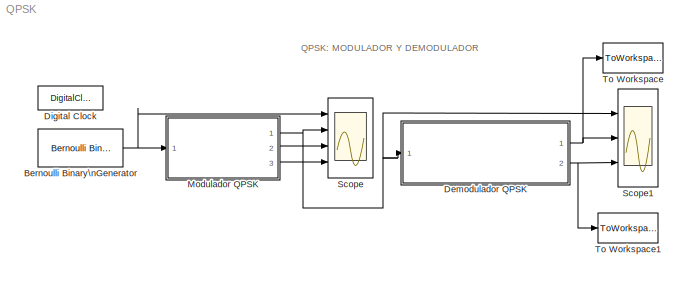
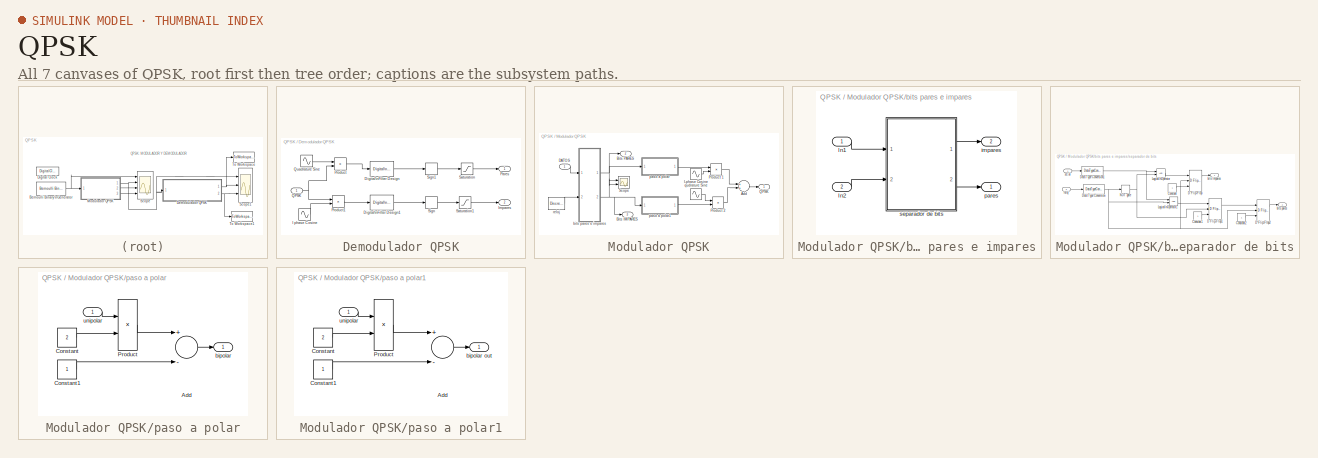
[diagram: thumbnail index - all 7 canvases of the model, root first then tree order]
MODEL QPSK
KIND model
CONFIG StopFcn = QPSK_RX_StopFcn
BLOCK [Reference] Bernoulli Binary\nGenerator  REF=commrandsrc2/Bernoulli Binary\nGenerator
  DialogController = commDDGCreate
  DialogControllerArgs = DataTag0
  FunctionWithSeparateData = off
  P = 0.5
  Ports = [0, 1]
  RTWMemSecDataConstants = Inherit from model
  RTWMemSecDataInternal = Inherit from model
  RTWMemSecDataParameters = Inherit from model
  RTWMemSecFuncExecute = Inherit from model
  RTWMemSecFuncInitTerm = Inherit from model
  ShowPortLabels = FromPortIcon
  SourceBlock = commrandsrc2/Bernoulli Binary\nGenerator
  SourceType = Bernoulli Binary Generator
  SystemSampleTime = -1
  Ts = .5
  frameBased = off
  orient = off
  outDataType = double
  sampPerFrame = 1
  seed = 61
BLOCK [SubSystem] Demodulador QPSK
  FunctionWithSeparateData = off
  MaskHideContents = off
  MinAlgLoopOccurrences = off
  Opaque = off
  Ports = [1, 2]
  PropExecContextOutsideSubsystem = off
  RTWSystemCode = Auto
  RequestExecContextInheritance = off
BLOCK [Reference] Demodulador QPSK/Digital\nFilter Design  REF=dsparch4/Digital\nFilter Design
  FunctionWithSeparateData = off
  Ports = [1, 1]
  RTWMemSecDataConstants = Inherit from model
  RTWMemSecDataInternal = Inherit from model
  RTWMemSecDataParameters = Inherit from model
  RTWMemSecFuncExecute = Inherit from model
  RTWMemSecFuncInitTerm = Inherit from model
  ShowPortLabels = FromPortIcon
  SourceBlock = dsparch4/Digital\nFilter Design
  SourceType = Digital Filter Design
  SystemSampleTime = -1
  UserData = DataTag1
  UserDataPersistent = on
  mwdsp_browser_bugfix_var = off
BLOCK [Reference] Demodulador QPSK/Digital\nFilter Design1  REF=dsparch4/Digital\nFilter Design
  FunctionWithSeparateData = off
  Ports = [1, 1]
  RTWMemSecDataConstants = Inherit from model
  RTWMemSecDataInternal = Inherit from model
  RTWMemSecDataParameters = Inherit from model
  RTWMemSecFuncExecute = Inherit from model
  RTWMemSecFuncInitTerm = Inherit from model
  ShowPortLabels = FromPortIcon
  SourceBlock = dsparch4/Digital\nFilter Design
  SourceType = Digital Filter Design
  SystemSampleTime = -1
  UserData = DataTag2
  UserDataPersistent = on
  mwdsp_browser_bugfix_var = off
BLOCK [Sin] Demodulador QPSK/I phase Cosine
  Frequency = 2*pi*4
  Offset = 25
  Phase = pi
  Ports = [0, 1]
  SampleTime = 1/100
  Samples = 100
BLOCK [Outport] Demodulador QPSK/Impares
  IconDisplay = Port number
  OutDataType = sfix(16)
  OutScaling = 2^0
  Port = 2
BLOCK [Outport] Demodulador QPSK/Pares
  IconDisplay = Port number
  OutDataType = sfix(16)
  OutScaling = 2^0
BLOCK [Product] Demodulador QPSK/Product
  InputSameDT = off
  OutDataType = sfix(16)
  OutDataTypeMode = Inherit via internal rule
  OutDataTypeStr = Inherit: Inherit via internal rule
  OutScaling = 2^0
  Ports = [2, 1]
  SampleTime = 1/200
  SaturateOnIntegerOverflow = off
BLOCK [Product] Demodulador QPSK/Product1
  InputSameDT = off
  OutDataType = sfix(16)
  OutDataTypeMode = Inherit via internal rule
  OutDataTypeStr = Inherit: Inherit via internal rule
  OutScaling = 2^0
  Ports = [2, 1]
  SampleTime = 1/200
  SaturateOnIntegerOverflow = off
BLOCK [Inport] Demodulador QPSK/QPSK
  IconDisplay = Port number
  OutDataType = sfix(16)
  OutScaling = 2^0
BLOCK [Sin] Demodulador QPSK/Quadrature Sine
  Frequency = 2*pi*4
  Offset = 50
  Phase = pi/2
  Ports = [0, 1]
  SampleTime = 1/100
  Samples = 100
BLOCK [Saturate] Demodulador QPSK/Saturation
  LowerLimit = 0
  UpperLimit = 1
BLOCK [Saturate] Demodulador QPSK/Saturation1
  LowerLimit = 0
  UpperLimit = 1
BLOCK [Signum] Demodulador QPSK/Sign
BLOCK [Signum] Demodulador QPSK/Sign1
BLOCK [DigitalClock] Digital Clock
  SampleTime = 0.001
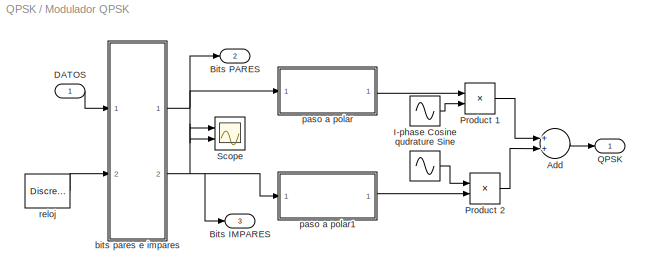
BLOCK [SubSystem] Modulador QPSK
  FunctionWithSeparateData = off
  MaskHideContents = off
  MinAlgLoopOccurrences = off
  Opaque = off
  Ports = [1, 3]
  PropExecContextOutsideSubsystem = off
  RTWSystemCode = Auto
  RequestExecContextInheritance = off
BLOCK [Sum] Modulador QPSK/Add
  InputSameDT = off
  OutDataType = sfix(16)
  OutDataTypeMode = Inherit via internal rule
  OutDataTypeStr = Inherit: Inherit via internal rule
  OutScaling = 2^-10
  Ports = [2, 1]
  SaturateOnIntegerOverflow = off
BLOCK [Outport] Modulador QPSK/Bits IMPARES
  IconDisplay = Port number
  OutDataType = sfix(16)
  OutScaling = 2^0
  Port = 3
BLOCK [Outport] Modulador QPSK/Bits PARES
  IconDisplay = Port number
  OutDataType = sfix(16)
  OutScaling = 2^0
  Port = 2
BLOCK [Inport] Modulador QPSK/DATOS
  IconDisplay = Port number
  OutDataType = sfix(16)
  OutScaling = 2^0
BLOCK [Sin] Modulador QPSK/I-phase Cosine 
  Frequency = 2*pi*4
  Phase = pi/2
  Ports = [0, 1]
  SampleTime = 0.01
BLOCK [Product] Modulador QPSK/Product 1
  InputSameDT = off
  OutDataType = sfix(16)
  OutDataTypeMode = Inherit via internal rule
  OutDataTypeStr = Inherit: Inherit via internal rule
  OutScaling = 2^0
  Ports = [2, 1]
  SaturateOnIntegerOverflow = off
BLOCK [Product] Modulador QPSK/Product 2
  InputSameDT = off
  OutDataType = sfix(16)
  OutDataTypeMode = Inherit via internal rule
  OutDataTypeStr = Inherit: Inherit via internal rule
  OutScaling = 2^0
  Ports = [2, 1]
  SaturateOnIntegerOverflow = off
BLOCK [Outport] Modulador QPSK/QPSK
  IconDisplay = Port number
  OutDataType = sfix(16)
  OutScaling = 2^0
BLOCK [Scope] Modulador QPSK/Scope
  DataFormat = StructureWithTime
  Floating = off
  LimitDataPoints = off
  NumInputPorts = 2
  Ports = [2]
  SampleInput = on
  SampleTime = 0
  SaveName = ScopeData1
  YMax = 5~5
  YMin = -5~-5
BLOCK [SubSystem] Modulador QPSK/bits pares e impares
  FunctionWithSeparateData = off
  MaskHideContents = off
  MinAlgLoopOccurrences = off
  Opaque = off
  Ports = [2, 2]
  PropExecContextOutsideSubsystem = off
  RTWSystemCode = Auto
  RequestExecContextInheritance = off
BLOCK [Inport] Modulador QPSK/bits pares e impares/In1
  IconDisplay = Port number
  OutDataType = sfix(16)
  OutScaling = 2^0
BLOCK [Inport] Modulador QPSK/bits pares e impares/In2
  IconDisplay = Port number
  OutDataType = sfix(16)
  OutScaling = 2^0
  Port = 2
BLOCK [Outport] Modulador QPSK/bits pares e impares/impares
  IconDisplay = Port number
  OutDataType = sfix(16)
  OutScaling = 2^0
  Port = 2
BLOCK [Outport] Modulador QPSK/bits pares e impares/pares
  IconDisplay = Port number
  OutDataType = sfix(16)
  OutScaling = 2^0
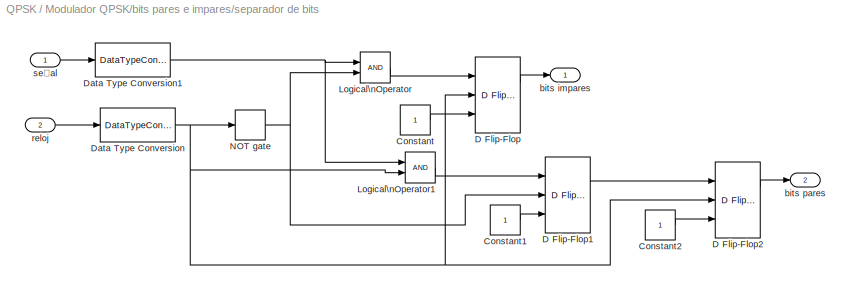
BLOCK [SubSystem] Modulador QPSK/bits pares e impares/separador de bits
  FunctionWithSeparateData = off
  MaskHideContents = off
  MinAlgLoopOccurrences = off
  Opaque = off
  Ports = [2, 2]
  PropExecContextOutsideSubsystem = off
  RTWSystemCode = Auto
  RequestExecContextInheritance = off
BLOCK [Constant] Modulador QPSK/bits pares e impares/separador de bits/Constant
  OutDataType = sfix(16)
  OutDataTypeMode = boolean
  OutDataTypeStr = boolean
  OutScaling = 2^0
BLOCK [Constant] Modulador QPSK/bits pares e impares/separador de bits/Constant1
  OutDataType = sfix(16)
  OutDataTypeMode = boolean
  OutDataTypeStr = boolean
  OutScaling = 2^0
BLOCK [Constant] Modulador QPSK/bits pares e impares/separador de bits/Constant2
  OutDataType = sfix(16)
  OutDataTypeMode = boolean
  OutDataTypeStr = boolean
  OutScaling = 2^0
BLOCK [Reference] Modulador QPSK/bits pares e impares/separador de bits/D Flip-Flop  REF=simulink_extras/Flip Flops/D Flip-Flop
  FunctionWithSeparateData = off
  Ports = [3, 2]
  RTWMemSecDataConstants = Inherit from model
  RTWMemSecDataInternal = Inherit from model
  RTWMemSecDataParameters = Inherit from model
  RTWMemSecFuncExecute = Inherit from model
  RTWMemSecFuncInitTerm = Inherit from model
  ShowPortLabels = FromPortIcon
  SourceBlock = simulink_extras/Flip Flops/D Flip-Flop
  SourceType = DFlipFlop
  SystemSampleTime = -1
BLOCK [Reference] Modulador QPSK/bits pares e impares/separador de bits/D Flip-Flop1  REF=simulink_extras/Flip Flops/D Flip-Flop
  FunctionWithSeparateData = off
  Ports = [3, 2]
  RTWMemSecDataConstants = Inherit from model
  RTWMemSecDataInternal = Inherit from model
  RTWMemSecDataParameters = Inherit from model
  RTWMemSecFuncExecute = Inherit from model
  RTWMemSecFuncInitTerm = Inherit from model
  ShowPortLabels = FromPortIcon
  SourceBlock = simulink_extras/Flip Flops/D Flip-Flop
  SourceType = DFlipFlop
  SystemSampleTime = -1
BLOCK [Reference] Modulador QPSK/bits pares e impares/separador de bits/D Flip-Flop2  REF=simulink_extras/Flip Flops/D Flip-Flop
  FunctionWithSeparateData = off
  Ports = [3, 2]
  RTWMemSecDataConstants = Inherit from model
  RTWMemSecDataInternal = Inherit from model
  RTWMemSecDataParameters = Inherit from model
  RTWMemSecFuncExecute = Inherit from model
  RTWMemSecFuncInitTerm = Inherit from model
  ShowPortLabels = FromPortIcon
  SourceBlock = simulink_extras/Flip Flops/D Flip-Flop
  SourceType = DFlipFlop
  SystemSampleTime = -1
BLOCK [DataTypeConversion] Modulador QPSK/bits pares e impares/separador de bits/Data Type Conversion
  OutDataType = sfix(16)
  OutDataTypeMode = boolean
  OutDataTypeStr = boolean
  OutScaling = 2^0
  RndMeth = Floor
  SaturateOnIntegerOverflow = off
BLOCK [DataTypeConversion] Modulador QPSK/bits pares e impares/separador de bits/Data Type Conversion1
  OutDataType = sfix(16)
  OutDataTypeMode = boolean
  OutDataTypeStr = boolean
  OutScaling = 2^0
  RndMeth = Floor
  SaturateOnIntegerOverflow = off
BLOCK [Logic] Modulador QPSK/bits pares e impares/separador de bits/Logical\nOperator
  AllPortsSameDT = off
  OutDataTypeMode = boolean
  OutDataTypeStr = boolean
  Ports = [2, 1]
BLOCK [Logic] Modulador QPSK/bits pares e impares/separador de bits/Logical\nOperator1
  AllPortsSameDT = off
  OutDataTypeMode = boolean
  OutDataTypeStr = boolean
  Ports = [2, 1]
BLOCK [CombinatorialLogic] Modulador QPSK/bits pares e impares/separador de bits/NOT gate
  TruthTable = [1;0]
BLOCK [Outport] Modulador QPSK/bits pares e impares/separador de bits/bits impares
  IconDisplay = Port number
  OutDataType = sfix(16)
  OutScaling = 2^0
BLOCK [Outport] Modulador QPSK/bits pares e impares/separador de bits/bits pares
  IconDisplay = Port number
  OutDataType = sfix(16)
  OutScaling = 2^0
  Port = 2
BLOCK [Inport] Modulador QPSK/bits pares e impares/separador de bits/reloj
  IconDisplay = Port number
  OutDataType = sfix(16)
  OutScaling = 2^0
  Port = 2
BLOCK [Inport] Modulador QPSK/bits pares e impares/separador de bits/señal
  IconDisplay = Port number
  OutDataType = sfix(16)
  OutScaling = 2^0
BLOCK [SubSystem] Modulador QPSK/paso a polar
  FunctionWithSeparateData = off
  MaskHideContents = off
  MinAlgLoopOccurrences = off
  Opaque = off
  Ports = [1, 1]
  PropExecContextOutsideSubsystem = off
  RTWSystemCode = Auto
  RequestExecContextInheritance = off
BLOCK [Sum] Modulador QPSK/paso a polar/Add
  InputSameDT = off
  Inputs = +-
  OutDataType = sfix(16)
  OutDataTypeMode = Inherit via internal rule
  OutDataTypeStr = Inherit: Inherit via internal rule
  OutScaling = 2^-10
  Ports = [2, 1]
  SaturateOnIntegerOverflow = off
BLOCK [Constant] Modulador QPSK/paso a polar/Constant
  OutDataType = sfix(16)
  OutScaling = 2^0
  Value = 2
BLOCK [Constant] Modulador QPSK/paso a polar/Constant1
  OutDataType = sfix(16)
  OutScaling = 2^0
BLOCK [Product] Modulador QPSK/paso a polar/Product
  InputSameDT = off
  OutDataType = sfix(16)
  OutDataTypeMode = Inherit via internal rule
  OutDataTypeStr = Inherit: Inherit via internal rule
  OutScaling = 2^0
  Ports = [2, 1]
  SaturateOnIntegerOverflow = off
BLOCK [Outport] Modulador QPSK/paso a polar/bipolar
  IconDisplay = Port number
  OutDataType = sfix(16)
  OutScaling = 2^0
BLOCK [Inport] Modulador QPSK/paso a polar/unipolar
  IconDisplay = Port number
  OutDataType = sfix(16)
  OutScaling = 2^0
BLOCK [SubSystem] Modulador QPSK/paso a polar1
  FunctionWithSeparateData = off
  MaskHideContents = off
  MinAlgLoopOccurrences = off
  Opaque = off
  Ports = [1, 1]
  PropExecContextOutsideSubsystem = off
  RTWSystemCode = Auto
  RequestExecContextInheritance = off
BLOCK [Sum] Modulador QPSK/paso a polar1/Add
  InputSameDT = off
  Inputs = +-
  OutDataType = sfix(16)
  OutDataTypeMode = Inherit via internal rule
  OutDataTypeStr = Inherit: Inherit via internal rule
  OutScaling = 2^-10
  Ports = [2, 1]
  SaturateOnIntegerOverflow = off
BLOCK [Constant] Modulador QPSK/paso a polar1/Constant
  OutDataType = sfix(16)
  OutScaling = 2^0
  Value = 2
BLOCK [Constant] Modulador QPSK/paso a polar1/Constant1
  OutDataType = sfix(16)
  OutScaling = 2^0
BLOCK [Product] Modulador QPSK/paso a polar1/Product
  InputSameDT = off
  OutDataType = sfix(16)
  OutDataTypeMode = Inherit via internal rule
  OutDataTypeStr = Inherit: Inherit via internal rule
  OutScaling = 2^0
  Ports = [2, 1]
  SaturateOnIntegerOverflow = off
BLOCK [Outport] Modulador QPSK/paso a polar1/bipolar out
  IconDisplay = Port number
  OutDataType = sfix(16)
  OutScaling = 2^0
BLOCK [Inport] Modulador QPSK/paso a polar1/unipolar
  IconDisplay = Port number
  OutDataType = sfix(16)
  OutScaling = 2^0
BLOCK [Sin] Modulador QPSK/qudrature Sine
  Frequency = 2*pi*4
  Phase = pi
  Ports = [0, 1]
  SampleTime = 0.01
BLOCK [DiscretePulseGenerator] Modulador QPSK/reloj
  Period = 1
  Ports = [0, 1]
  PulseType = Time based
  PulseWidth = 50
BLOCK [Scope] Scope
  DataFormat = StructureWithTime
  Floating = off
  LimitDataPoints = off
  NumInputPorts = 4
  Ports = [4]
  SampleInput = on
  SampleTime = 0
  YMax = 5~5~5~3
  YMin = -5~-5~-5~-3
BLOCK [Scope] Scope1
  DataFormat = StructureWithTime
  Floating = off
  LimitDataPoints = off
  NumInputPorts = 3
  Ports = [3]
  SampleInput = on
  SampleTime = 0
  SaveName = ScopeData2
  YMax = 5~5~5
  YMin = -5~-5~-5
BLOCK [ToWorkspace] To Workspace
  MaxDataPoints = inf
  SampleTime = 1/100
  SaveFormat = Array
  VariableName = pares
BLOCK [ToWorkspace] To Workspace1
  MaxDataPoints = inf
  SampleTime = 1/100
  SaveFormat = Array
  VariableName = impares
ANNOTATION (root): QPSK: MODULADOR Y DEMODULADOR
NET Bernoulli Binary\nGenerator:1 -> Modulador QPSK:1, Scope:1
LINE Demodulador QPSK/Digital\nFilter Design1:1 -> Demodulador QPSK/Sign:1
LINE Demodulador QPSK/Digital\nFilter Design:1 -> Demodulador QPSK/Sign1:1
LINE Demodulador QPSK/I phase Cosine:1 -> Demodulador QPSK/Product1:2
LINE Demodulador QPSK/Product1:1 -> Demodulador QPSK/Digital\nFilter Design1:1
LINE Demodulador QPSK/Product:1 -> Demodulador QPSK/Digital\nFilter Design:1
NET Demodulador QPSK/QPSK:1 -> Demodulador QPSK/Product1:1, Demodulador QPSK/Product:2
LINE Demodulador QPSK/Quadrature Sine:1 -> Demodulador QPSK/Product:1
LINE Demodulador QPSK/Saturation1:1 -> Demodulador QPSK/Impares:1
LINE Demodulador QPSK/Saturation:1 -> Demodulador QPSK/Pares:1
LINE Demodulador QPSK/Sign1:1 -> Demodulador QPSK/Saturation:1
LINE Demodulador QPSK/Sign:1 -> Demodulador QPSK/Saturation1:1
NET Demodulador QPSK:1 -> Scope1:2, To Workspace:1
NET Demodulador QPSK:2 -> Scope1:3, To Workspace1:1
LINE Modulador QPSK/Add:1 -> Modulador QPSK/QPSK:1
LINE Modulador QPSK/DATOS:1 -> Modulador QPSK/bits pares e impares:1
LINE Modulador QPSK/I-phase Cosine :1 -> Modulador QPSK/Product 1:2
LINE Modulador QPSK/Product 1:1 -> Modulador QPSK/Add:1
LINE Modulador QPSK/Product 2:1 -> Modulador QPSK/Add:2
LINE Modulador QPSK/bits pares e impares/In1:1 -> Modulador QPSK/bits pares e impares/separador de bits:1
LINE Modulador QPSK/bits pares e impares/In2:1 -> Modulador QPSK/bits pares e impares/separador de bits:2
LINE Modulador QPSK/bits pares e impares/separador de bits/Constant1:1 -> Modulador QPSK/bits pares e impares/separador de bits/D Flip-Flop1:3
LINE Modulador QPSK/bits pares e impares/separador de bits/Constant2:1 -> Modulador QPSK/bits pares e impares/separador de bits/D Flip-Flop2:3
LINE Modulador QPSK/bits pares e impares/separador de bits/Constant:1 -> Modulador QPSK/bits pares e impares/separador de bits/D Flip-Flop:3
LINE Modulador QPSK/bits pares e impares/separador de bits/D Flip-Flop1:1 -> Modulador QPSK/bits pares e impares/separador de bits/D Flip-Flop2:1
LINE Modulador QPSK/bits pares e impares/separador de bits/D Flip-Flop2:1 -> Modulador QPSK/bits pares e impares/separador de bits/bits pares:1
LINE Modulador QPSK/bits pares e impares/separador de bits/D Flip-Flop:1 -> Modulador QPSK/bits pares e impares/separador de bits/bits impares:1
NET Modulador QPSK/bits pares e impares/separador de bits/Data Type Conversion1:1 -> Modulador QPSK/bits pares e impares/separador de bits/Logical\nOperator1:1, Modulador QPSK/bits pares e impares/separador de bits/Logical\nOperator:1
NET Modulador QPSK/bits pares e impares/separador de bits/Data Type Conversion:1 -> Modulador QPSK/bits pares e impares/separador de bits/D Flip-Flop2:2, Modulador QPSK/bits pares e impares/separador de bits/D Flip-Flop:2, Modulador QPSK/bits pares e impares/separador de bits/Logical\nOperator1:2, Modulador QPSK/bits pares e impares/separador de bits/NOT gate:1
LINE Modulador QPSK/bits pares e impares/separador de bits/Logical\nOperator1:1 -> Modulador QPSK/bits pares e impares/separador de bits/D Flip-Flop1:1
LINE Modulador QPSK/bits pares e impares/separador de bits/Logical\nOperator:1 -> Modulador QPSK/bits pares e impares/separador de bits/D Flip-Flop:1
NET Modulador QPSK/bits pares e impares/separador de bits/NOT gate:1 -> Modulador QPSK/bits pares e impares/separador de bits/D Flip-Flop1:2, Modulador QPSK/bits pares e impares/separador de bits/Logical\nOperator:2
LINE Modulador QPSK/bits pares e impares/separador de bits/reloj:1 -> Modulador QPSK/bits pares e impares/separador de bits/Data Type Conversion:1
LINE Modulador QPSK/bits pares e impares/separador de bits/señal:1 -> Modulador QPSK/bits pares e impares/separador de bits/Data Type Conversion1:1
LINE Modulador QPSK/bits pares e impares/separador de bits:1 -> Modulador QPSK/bits pares e impares/impares:1
LINE Modulador QPSK/bits pares e impares/separador de bits:2 -> Modulador QPSK/bits pares e impares/pares:1
NET Modulador QPSK/bits pares e impares:1 -> Modulador QPSK/Bits PARES:1, Modulador QPSK/Scope:1, Modulador QPSK/paso a polar:1
NET Modulador QPSK/bits pares e impares:2 -> Modulador QPSK/Bits IMPARES:1, Modulador QPSK/Scope:2, Modulador QPSK/paso a polar1:1
LINE Modulador QPSK/paso a polar/Add:1 -> Modulador QPSK/paso a polar/bipolar:1
LINE Modulador QPSK/paso a polar/Constant1:1 -> Modulador QPSK/paso a polar/Add:2
LINE Modulador QPSK/paso a polar/Constant:1 -> Modulador QPSK/paso a polar/Product:2
LINE Modulador QPSK/paso a polar/Product:1 -> Modulador QPSK/paso a polar/Add:1
LINE Modulador QPSK/paso a polar/unipolar:1 -> Modulador QPSK/paso a polar/Product:1
LINE Modulador QPSK/paso a polar1/Add:1 -> Modulador QPSK/paso a polar1/bipolar out:1
LINE Modulador QPSK/paso a polar1/Constant1:1 -> Modulador QPSK/paso a polar1/Add:2
LINE Modulador QPSK/paso a polar1/Constant:1 -> Modulador QPSK/paso a polar1/Product:2
LINE Modulador QPSK/paso a polar1/Product:1 -> Modulador QPSK/paso a polar1/Add:1
LINE Modulador QPSK/paso a polar1/unipolar:1 -> Modulador QPSK/paso a polar1/Product:1
LINE Modulador QPSK/paso a polar1:1 -> Modulador QPSK/Product 2:2
LINE Modulador QPSK/paso a polar:1 -> Modulador QPSK/Product 1:1
LINE Modulador QPSK/qudrature Sine:1 -> Modulador QPSK/Product 2:1
LINE Modulador QPSK/reloj:1 -> Modulador QPSK/bits pares e impares:2
NET Modulador QPSK:1 -> Demodulador QPSK:1, Scope1:1, Scope:2
LINE Modulador QPSK:2 -> Scope:3
LINE Modulador QPSK:3 -> Scope:4
note: NET lines group one-source signal fan-out (src -> all destinations, sorted); 1:1 wires keep LINE
